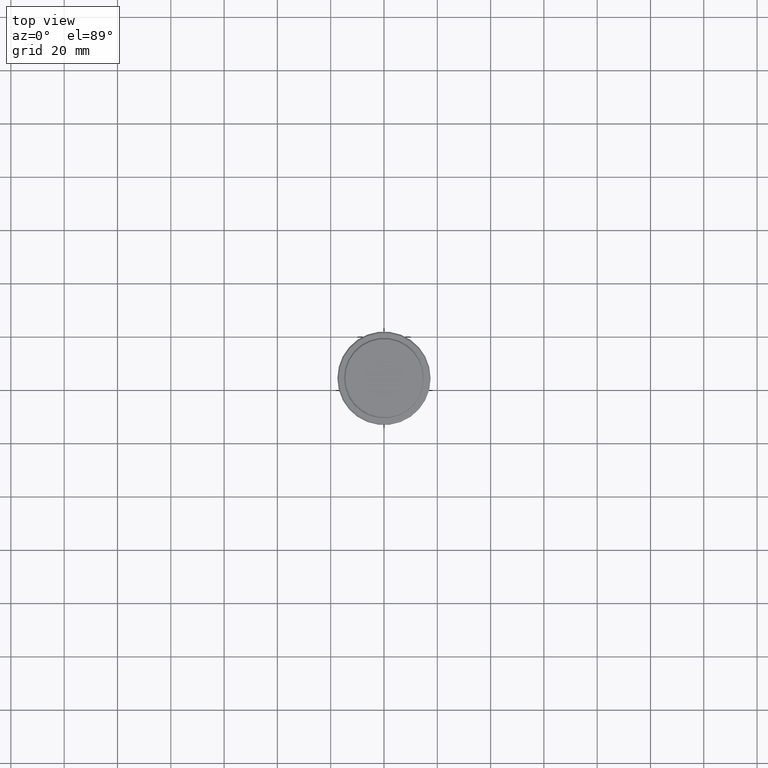
[diagram: clean part render]
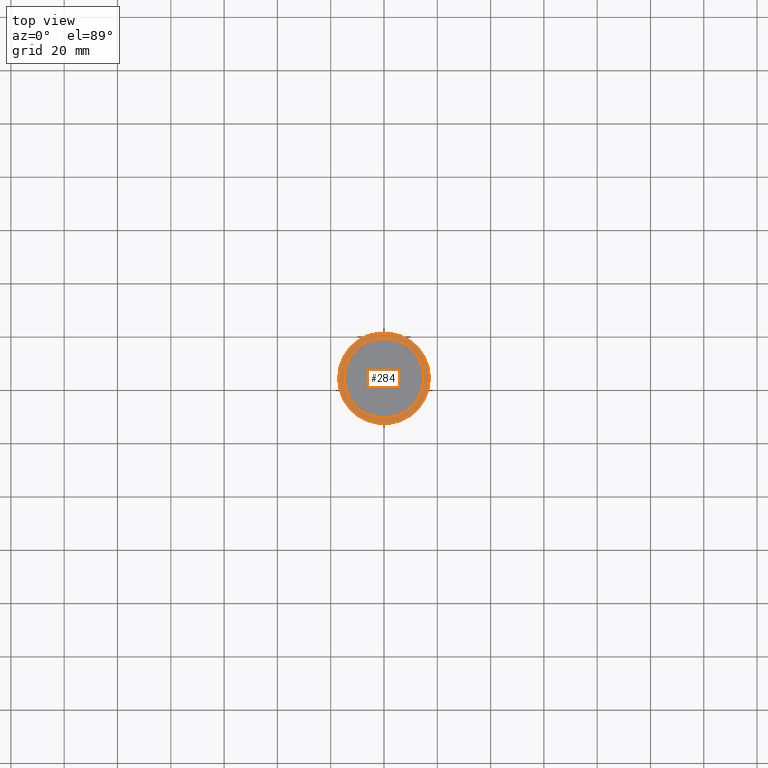
[diagram: same view with one face highlighted and labeled with its STEP entity id]
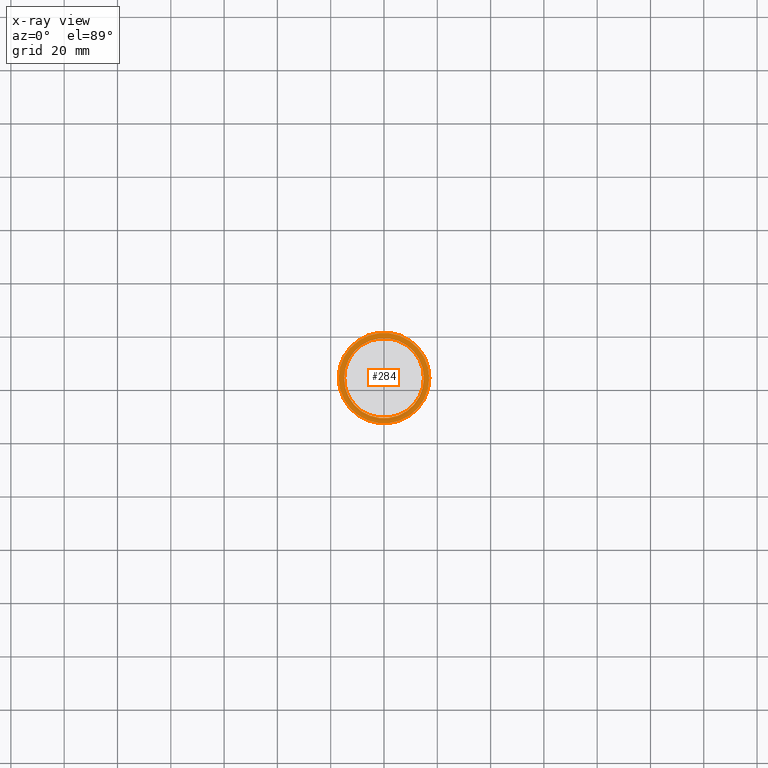
[diagram: x-ray of the same camera — body ghosted, the highlighted face saturated]
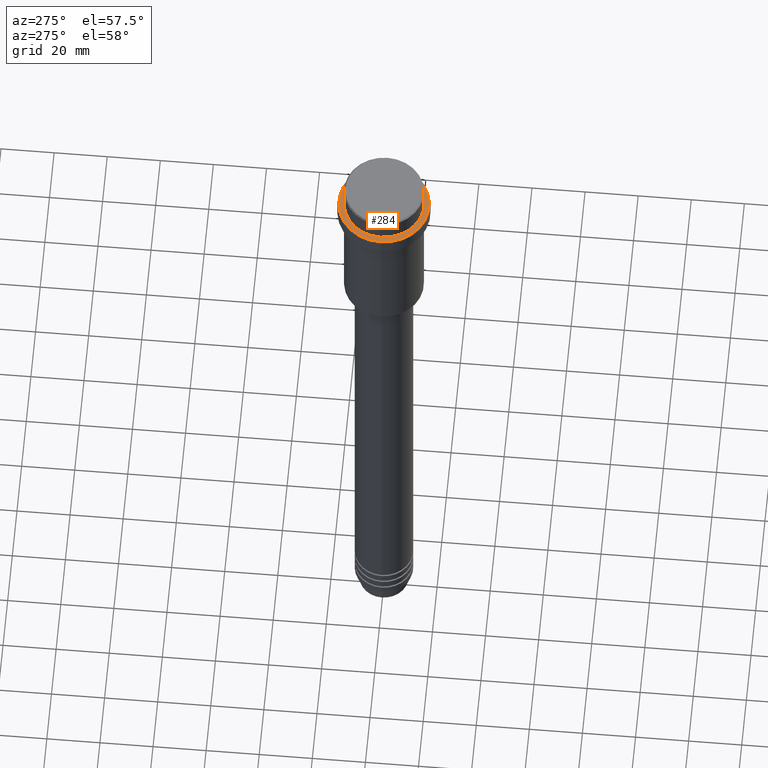
[diagram: same view with one face highlighted and labeled with its STEP entity id]
A machine part, top view. The second image highlights one B-rep face of the part: STEP entity #284.
The next image is the same camera in x-ray: the body ghosted, the highlighted face saturated — about 0% of this face is hidden behind the body in this view.
A second angle (auxiliary view) of the same face is appended — the face is thin or edge-on in the first view.
In plain terms, the highlighted planar face has unit normal (0, -0, 1).
Its self-contained STEP definition (entity closure, byte-faithful):
#19 = CARTESIAN_POINT ( 'NONE',  ( -14.99999999999999289, 1.836970198721028800E-15, -9.000000000000000000 ) ) ;
#44 = AXIS2_PLACEMENT_3D ( 'NONE', #589, #816, #50 ) ;
#50 = DIRECTION ( 'NONE',  ( 1.000000000000000000, 0.000000000000000000, 0.000000000000000000 ) ) ;
#86 = CIRCLE ( 'NONE', #347, 16.99999999999996092 ) ;
#90 = VERTEX_POINT ( 'NONE', #1088 ) ;
#138 = CIRCLE ( 'NONE', #181, 14.99999999999999289 ) ;
#145 = CARTESIAN_POINT ( 'NONE',  ( -16.99999999999996092, 0.000000000000000000, -9.000000000000000000 ) ) ;
#181 = AXIS2_PLACEMENT_3D ( 'NONE', #1073, #289, #718 ) ;
#187 = CARTESIAN_POINT ( 'NONE',  ( 0.000000000000000000, 0.000000000000000000, -9.000000000000000000 ) ) ;
#212 = FACE_OUTER_BOUND ( 'NONE', #621, .T. ) ;
#216 = VERTEX_POINT ( 'NONE', #19 ) ;
#221 = CARTESIAN_POINT ( 'NONE',  ( 0.000000000000000000, 14.49999999999999467, -9.000000000000000000 ) ) ;
#229 = CIRCLE ( 'NONE', #44, 14.99999999999999289 ) ;
#244 = DIRECTION ( 'NONE',  ( 0.000000000000000000, -0.000000000000000000, 1.000000000000000000 ) ) ;
#276 = AXIS2_PLACEMENT_3D ( 'NONE', #187, #629, #401 ) ;
#284 = ADVANCED_FACE ( 'NONE', ( #212, #988 ), #352, .T. ) ;
#288 = DIRECTION ( 'NONE',  ( 1.000000000000000000, 0.000000000000000000, 0.000000000000000000 ) ) ;
#289 = DIRECTION ( 'NONE',  ( 0.000000000000000000, 0.000000000000000000, -1.000000000000000000 ) ) ;
#307 = EDGE_CURVE ( 'NONE', #336, #216, #229, .T. ) ;
#336 = VERTEX_POINT ( 'NONE', #1341 ) ;
#347 = AXIS2_PLACEMENT_3D ( 'NONE', #824, #514, #288 ) ;
#352 = PLANE ( 'NONE',  #660 ) ;
#401 = DIRECTION ( 'NONE',  ( 1.000000000000000000, 0.000000000000000000, 0.000000000000000000 ) ) ;
#427 = EDGE_LOOP ( 'NONE', ( #1402, #714 ) ) ;
#507 = EDGE_CURVE ( 'NONE', #216, #336, #138, .T. ) ;
#514 = DIRECTION ( 'NONE',  ( -0.000000000000000000, -0.000000000000000000, 1.000000000000000000 ) ) ;
#589 = CARTESIAN_POINT ( 'NONE',  ( 0.000000000000000000, 0.000000000000000000, -9.000000000000000000 ) ) ;
#621 = EDGE_LOOP ( 'NONE', ( #743, #736 ) ) ;
#629 = DIRECTION ( 'NONE',  ( -0.000000000000000000, -0.000000000000000000, 1.000000000000000000 ) ) ;
#656 = DIRECTION ( 'NONE',  ( 1.000000000000000000, 0.000000000000000000, 0.000000000000000000 ) ) ;
#660 = AXIS2_PLACEMENT_3D ( 'NONE', #221, #244, #656 ) ;
#714 = ORIENTED_EDGE ( 'NONE', *, *, #507, .T. ) ;
#718 = DIRECTION ( 'NONE',  ( 1.000000000000000000, 0.000000000000000000, 0.000000000000000000 ) ) ;
#736 = ORIENTED_EDGE ( 'NONE', *, *, #874, .T. ) ;
#743 = ORIENTED_EDGE ( 'NONE', *, *, #861, .T. ) ;
#816 = DIRECTION ( 'NONE',  ( 0.000000000000000000, 0.000000000000000000, -1.000000000000000000 ) ) ;
#824 = CARTESIAN_POINT ( 'NONE',  ( 0.000000000000000000, 0.000000000000000000, -9.000000000000000000 ) ) ;
#848 = CIRCLE ( 'NONE', #276, 16.99999999999996092 ) ;
#861 = EDGE_CURVE ( 'NONE', #1222, #90, #848, .T. ) ;
#874 = EDGE_CURVE ( 'NONE', #90, #1222, #86, .T. ) ;
#988 = FACE_BOUND ( 'NONE', #427, .T. ) ;
#1073 = CARTESIAN_POINT ( 'NONE',  ( 0.000000000000000000, 0.000000000000000000, -9.000000000000000000 ) ) ;
#1088 = CARTESIAN_POINT ( 'NONE',  ( 16.99999999999996092, 2.112515728529182095E-15, -9.000000000000000000 ) ) ;
#1222 = VERTEX_POINT ( 'NONE', #145 ) ;
#1341 = CARTESIAN_POINT ( 'NONE',  ( 14.99999999999999289, 0.000000000000000000, -9.000000000000000000 ) ) ;
#1402 = ORIENTED_EDGE ( 'NONE', *, *, #307, .T. ) ;